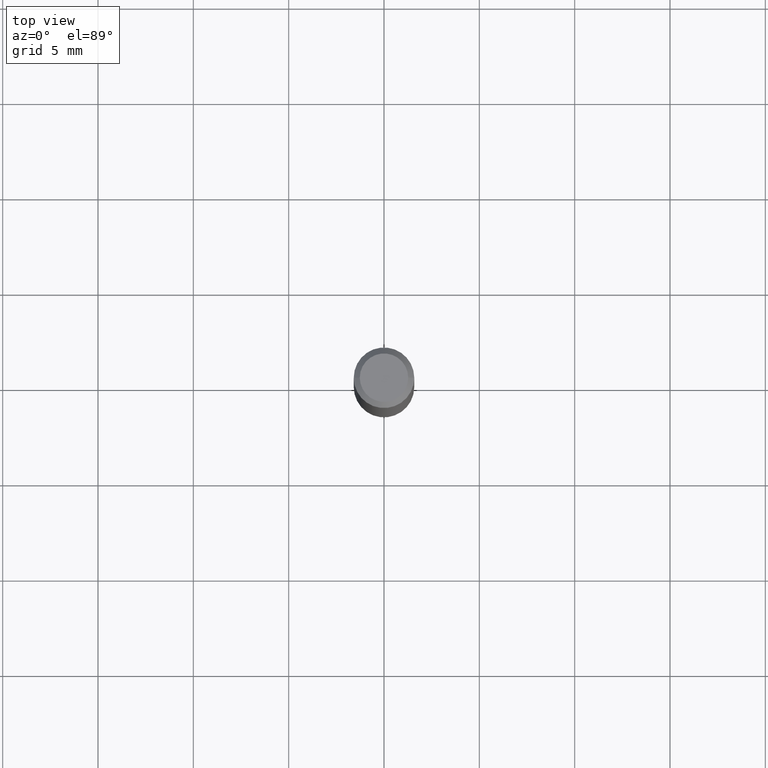
[diagram: clean part render]
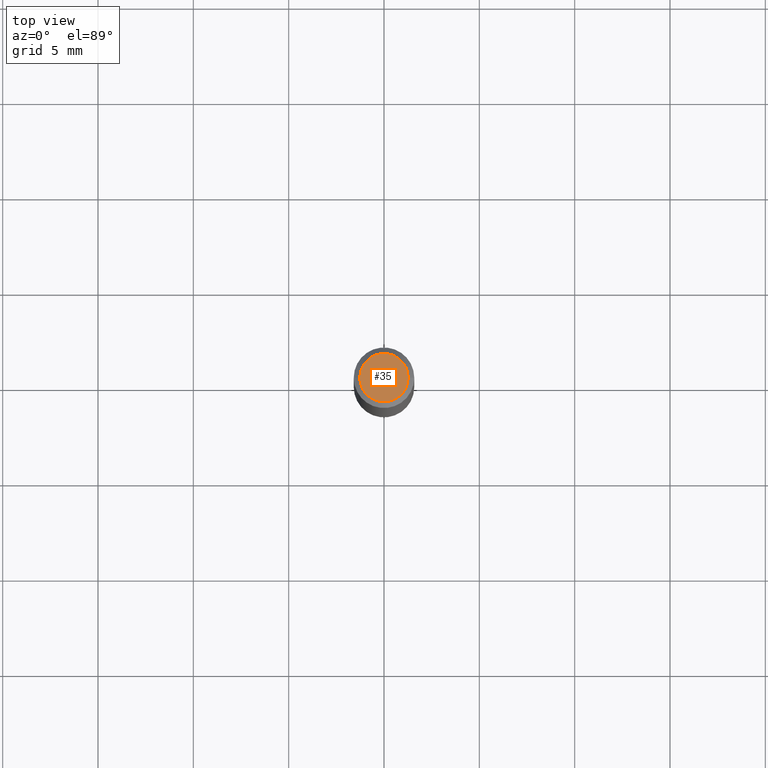
[diagram: same view with one face highlighted and labeled with its STEP entity id]
A machine part, top view. The second image highlights one B-rep face of the part: STEP entity #35.
In plain terms, the highlighted planar face has unit normal (0, -0, -1).
Its self-contained STEP definition (entity closure, byte-faithful):
#12 = FACE_OUTER_BOUND ( 'NONE', #239, .T. ) ;
#16 = CARTESIAN_POINT ( 'NONE',  ( 1.946643104841063088E-47, -2.779290439833033990E-33, -7.960204194457798443E-19 ) ) ;
#18 = AXIS2_PLACEMENT_3D ( 'NONE', #65, #101, #410 ) ;
#35 = ADVANCED_FACE ( 'NONE', ( #12 ), #465, .F. ) ;
#47 = DIRECTION ( 'NONE',  ( -2.445468806185136597E-29, 3.491481338843145583E-15, 1.000000000000000000 ) ) ;
#52 = CIRCLE ( 'NONE', #290, 0.04999999999999999584 ) ;
#65 = CARTESIAN_POINT ( 'NONE',  ( 3.893286209682126177E-47, -5.558580879666067980E-33, -1.592040838891559689E-18 ) ) ;
#101 = DIRECTION ( 'NONE',  ( -2.445468806185136597E-29, 3.491481338843145583E-15, 1.000000000000000000 ) ) ;
#134 = DIRECTION ( 'NONE',  ( -1.000000000000000000, 6.982962677686265922E-15, -4.876176775795935793E-29 ) ) ;
#143 = CIRCLE ( 'NONE', #18, 0.04999999999999999584 ) ;
#153 = CARTESIAN_POINT ( 'NONE',  ( 3.893286209682126177E-47, -5.558580879666067980E-33, -1.592040838891559689E-18 ) ) ;
#162 = VERTEX_POINT ( 'NONE', #418 ) ;
#170 = DIRECTION ( 'NONE',  ( 2.438088387897960049E-29, -3.491481338843145188E-15, -1.000000000000000000 ) ) ;
#171 = ORIENTED_EDGE ( 'NONE', *, *, #346, .T. ) ;
#223 = ORIENTED_EDGE ( 'NONE', *, *, #286, .T. ) ;
#230 = CARTESIAN_POINT ( 'NONE',  ( 0.04999999999999999584, -4.077247707424184705E-16, -1.592040838888913461E-18 ) ) ;
#239 = EDGE_LOOP ( 'NONE', ( #171, #223 ) ) ;
#267 = DIRECTION ( 'NONE',  ( 1.000000000000000000, -6.982962677686265922E-15, 4.875957971899673662E-29 ) ) ;
#268 = AXIS2_PLACEMENT_3D ( 'NONE', #16, #170, #134 ) ;
#286 = EDGE_CURVE ( 'NONE', #327, #162, #143, .T. ) ;
#290 = AXIS2_PLACEMENT_3D ( 'NONE', #153, #47, #267 ) ;
#327 = VERTEX_POINT ( 'NONE', #230 ) ;
#346 = EDGE_CURVE ( 'NONE', #162, #327, #52, .T. ) ;
#410 = DIRECTION ( 'NONE',  ( 1.000000000000000000, -6.982962677686265922E-15, 4.875957971899673662E-29 ) ) ;
#418 = CARTESIAN_POINT ( 'NONE',  ( -0.04999999999999999584, 3.709698922520826725E-16, -1.592040838894077649E-18 ) ) ;
#465 = PLANE ( 'NONE',  #268 ) ;